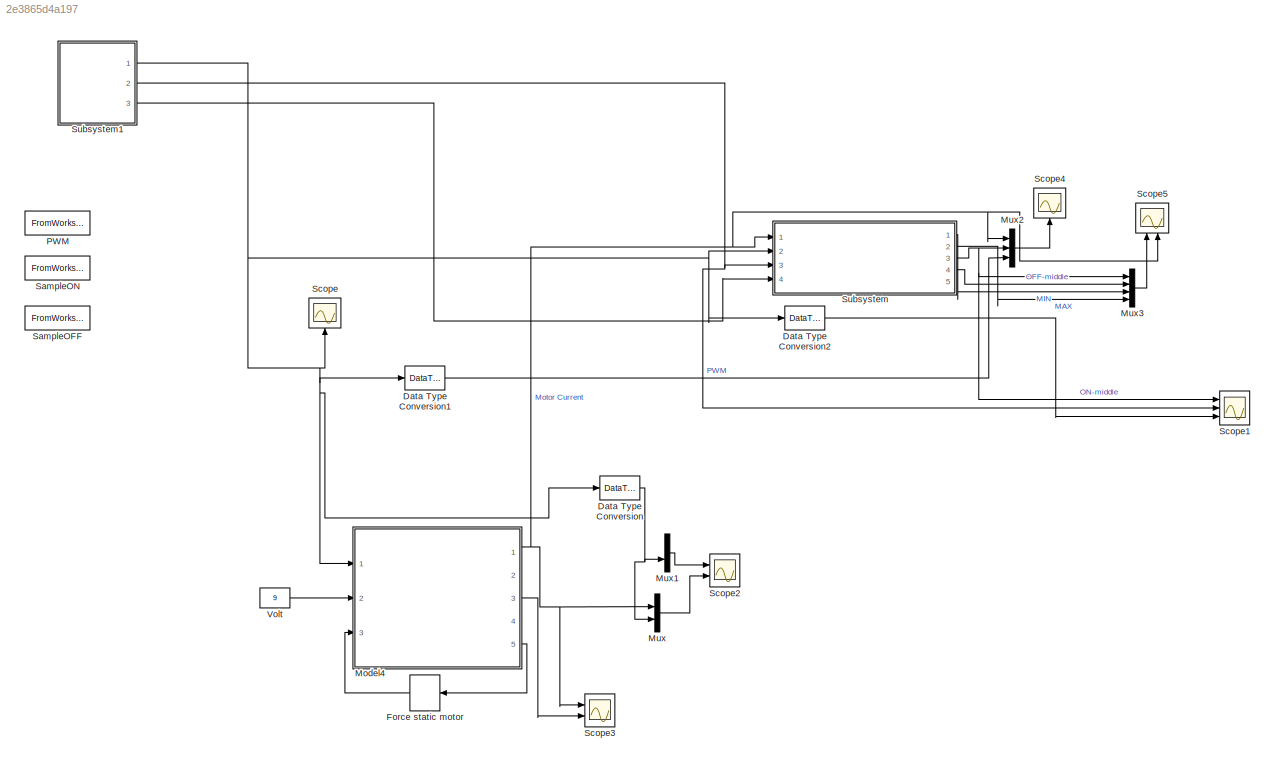
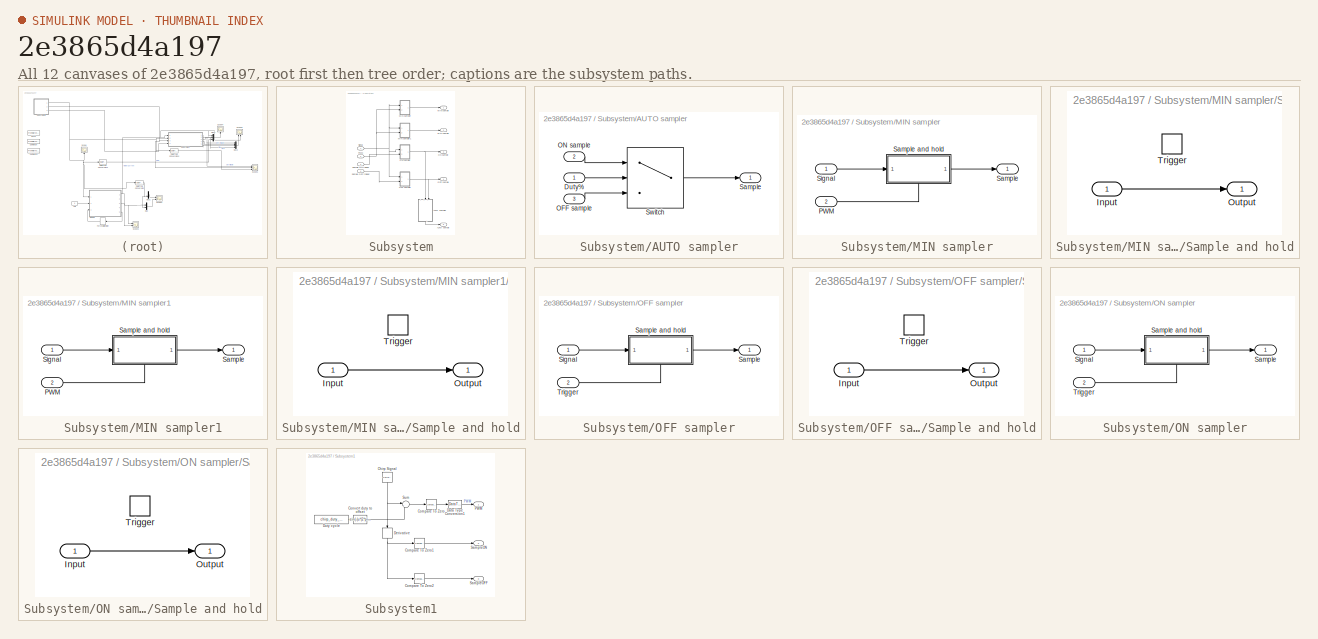
[diagram: thumbnail index - all 12 canvases of the model, root first then tree order]
MODEL slx_2e3865d4a197
KIND model
CONFIG AbsTol = auto
CONFIG EnableMultiTasking = off
CONFIG FixedStep = auto
CONFIG InitFcn = Parameters_Model\nParameters_Simulation\nParameters_Test_Chirp
CONFIG MaxStep = 1/(PWM_Resolution*PWM_Frequency)
CONFIG MinStep = auto
CONFIG PreLoadFcn = modelDir = fileparts(get_param(bdroot, 'FileName'));\naddpath(fullfile(modelDir,'../Parameters'));\naddpath(fullfile(modelDir,'subsystems'));\naddpath(fullfile(modelDir,'../DesignExploration/functions')); % for PWM_Generator\n\nParameters_Model\nParameters_Simulation\nParameters_Test_Chirp
CONFIG RelTol = 1e-3
CONFIG SampleTimeConstraint = Unconstrained
CONFIG Solver = VariableStepAuto
CONFIG SolverName = VariableStepAuto
CONFIG StartTime = 0.0
CONFIG StopTime = PWM.Time(end)
BLOCK [DataTypeConversion] Data Type Conversion
  RndMeth = Round
  SaturateOnIntegerOverflow = off
BLOCK [DataTypeConversion] Data Type Conversion1
  RndMeth = Round
  SaturateOnIntegerOverflow = off
BLOCK [DataTypeConversion] Data Type Conversion2
  RndMeth = Round
  SaturateOnIntegerOverflow = off
BLOCK [ManualSwitch] Force static motor
BLOCK [ModelReference] Model4
  ModelNameDialog = DC_Motor_BrakeMode
  ModelReferenceVersion = 1.43
  Ports = [3, 5]
BLOCK [Mux] Mux
  DisplayOption = bar
  Inputs = 2
  Ports = [2, 1]
BLOCK [Mux] Mux1
  DisplayOption = bar
  Inputs = 2
  Ports = [2, 1]
BLOCK [Mux] Mux2
  DisplayOption = bar
  Inputs = 3
  Ports = [3, 1]
BLOCK [Mux] Mux3
  DisplayOption = bar
  Ports = [4, 1]
BLOCK [FromWorkspace] PWM
  Interpolate = off
  OutputAfterFinalValue = Holding final value
  SampleTime = 0
  VariableName = PWM
  ZeroCross = on
BLOCK [FromWorkspace] SampleOFF
  Interpolate = off
  OutputAfterFinalValue = Holding final value
  SampleTime = 0
  VariableName = SampleOFF
  ZeroCross = on
BLOCK [FromWorkspace] SampleON
  Interpolate = off
  OutputAfterFinalValue = Holding final value
  SampleTime = 0
  VariableName = SampleON
  ZeroCross = on
BLOCK [Scope] Scope
  Floating = off
  NumInputPorts = 1
  Ports = [1]
  ScopeSpecificationString = Simulink.scopes.TimeScopeBlockCfg('CurrentConfiguration', extmgr.ConfigurationSet(extmgr.Configuration('Core','General UI',true),extmgr.Configuration('Core','Source UI',true),extmgr.Configuration('Sources','WiredSimulink',true),extmgr.Configuration('Visuals','Time Domain',true,'SerializedDisplays',{struct('MinYLimReal','-0.125','MaxYLimReal','1.125','YLabelReal','','MinYLimMag','0.00000','MaxYLimM...<+1420ch>
BLOCK [Scope] Scope1
  Floating = off
  NumInputPorts = 3
  Ports = [3]
  ScopeSpecificationString = Simulink.scopes.TimeScopeBlockCfg('CurrentConfiguration', extmgr.ConfigurationSet(extmgr.Configuration('Core','General UI',true),extmgr.Configuration('Core','Source UI',true),extmgr.Configuration('Sources','WiredSimulink',true,'DataLoggingVariableName','ScopeData3'),extmgr.Configuration('Visuals','Time Domain',true,'SerializedDisplays',{struct('MinYLimReal','-0.45592','MaxYLimReal','4.10328','YLab...<+1556ch>
BLOCK [Scope] Scope2
  Floating = off
  NumInputPorts = 2
  Ports = [2]
  ScopeSpecificationString = Simulink.scopes.TimeScopeBlockCfg('CurrentConfiguration', extmgr.ConfigurationSet(extmgr.Configuration('Core','General UI',true),extmgr.Configuration('Core','Source UI',true),extmgr.Configuration('Sources','WiredSimulink',true,'DataLoggingVariableName','ScopeData1'),extmgr.Configuration('Visuals','Time Domain',true,'SerializedDisplays',{struct('MinYLimReal','-0.125','MaxYLimReal','1.125','YLabelRe...<+2520ch>
BLOCK [Scope] Scope3
  Floating = off
  NumInputPorts = 2
  Ports = [2]
  ScopeSpecificationString = Simulink.scopes.TimeScopeBlockCfg('CurrentConfiguration', extmgr.ConfigurationSet(extmgr.Configuration('Core','General UI',true),extmgr.Configuration('Core','Source UI',true),extmgr.Configuration('Sources','WiredSimulink',true,'DataLoggingVariableName','ScopeData2'),extmgr.Configuration('Visuals','Time Domain',true,'SerializedDisplays',{struct('MinYLimReal','-0.4159','MaxYLimReal','3.74313','YLabe...<+2236ch>
BLOCK [Scope] Scope4
  Floating = off
  NumInputPorts = 1
  Ports = [1]
  ScopeSpecificationString = Simulink.scopes.TimeScopeBlockCfg('CurrentConfiguration', extmgr.ConfigurationSet(extmgr.Configuration('Core','General UI',true),extmgr.Configuration('Core','Source UI',true),extmgr.Configuration('Sources','WiredSimulink',true,'DataLoggingVariableName','ScopeData1'),extmgr.Configuration('Visuals','Time Domain',true,'SerializedDisplays',{struct('MinYLimReal','-0.4159','MaxYLimReal','3.74313','YLabe...<+1511ch>
BLOCK [Scope] Scope5
  Floating = off
  NumInputPorts = 2
  Ports = [2]
  ScopeSpecificationString = Simulink.scopes.TimeScopeBlockCfg('CurrentConfiguration', extmgr.ConfigurationSet(extmgr.Configuration('Core','General UI',true),extmgr.Configuration('Core','Source UI',true),extmgr.Configuration('Sources','WiredSimulink',true,'DataLoggingVariableName','ScopeData2'),extmgr.Configuration('Visuals','Time Domain',true,'SerializedDisplays',{struct('MinYLimReal','-0.4159','MaxYLimReal','3.74313','YLabe...<+1893ch>
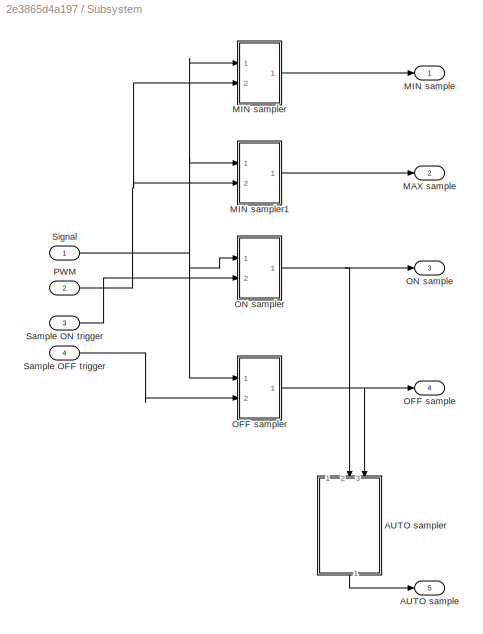
BLOCK [SubSystem] Subsystem
  Ports = [4, 5]
  RequestExecContextInheritance = off
BLOCK [Outport] Subsystem/AUTO sample
  IconDisplay = Port number
  Port = 5
  VectorParamsAs1DForOutWhenUnconnected = off
BLOCK [SubSystem] Subsystem/AUTO sampler
  Ports = [3, 1]
  RequestExecContextInheritance = off
BLOCK [Inport] Subsystem/AUTO sampler/Duty%
  IconDisplay = Port number
  OutDataTypeStr = double
BLOCK [Inport] Subsystem/AUTO sampler/OFF sample
  IconDisplay = Port number
  Port = 3
BLOCK [Inport] Subsystem/AUTO sampler/ON sample
  IconDisplay = Port number
  Port = 2
BLOCK [Outport] Subsystem/AUTO sampler/Sample
  IconDisplay = Port number
  VectorParamsAs1DForOutWhenUnconnected = off
BLOCK [Switch] Subsystem/AUTO sampler/Switch
  InputSameDT = off
  SaturateOnIntegerOverflow = off
  Threshold = 0.5
BLOCK [Outport] Subsystem/MAX sample
  IconDisplay = Port number
  Port = 2
  VectorParamsAs1DForOutWhenUnconnected = off
BLOCK [Outport] Subsystem/MIN sample
  IconDisplay = Port number
  VectorParamsAs1DForOutWhenUnconnected = off
BLOCK [SubSystem] Subsystem/MIN sampler
  Ports = [2, 1]
  RequestExecContextInheritance = off
BLOCK [Inport] Subsystem/MIN sampler/PWM
  IconDisplay = Port number
  Port = 2
BLOCK [Outport] Subsystem/MIN sampler/Sample
  IconDisplay = Port number
  VectorParamsAs1DForOutWhenUnconnected = off
BLOCK [SubSystem] Subsystem/MIN sampler/Sample and hold
  Ports = [1, 1, 0, 1]
  RequestExecContextInheritance = off
BLOCK [Inport] Subsystem/MIN sampler/Sample and hold/Input
  IconDisplay = Port number
BLOCK [Outport] Subsystem/MIN sampler/Sample and hold/Output
  IconDisplay = Port number
  VectorParamsAs1DForOutWhenUnconnected = off
BLOCK [TriggerPort] Subsystem/MIN sampler/Sample and hold/Trigger
  PortDimensions = 1
  Ports = []
  StatesWhenEnabling = held
  VariantControl = Variant
BLOCK [Inport] Subsystem/MIN sampler/Signal
  IconDisplay = Port number
BLOCK [SubSystem] Subsystem/MIN sampler1
  Ports = [2, 1]
  RequestExecContextInheritance = off
BLOCK [Inport] Subsystem/MIN sampler1/PWM
  IconDisplay = Port number
  Port = 2
BLOCK [Outport] Subsystem/MIN sampler1/Sample
  IconDisplay = Port number
  VectorParamsAs1DForOutWhenUnconnected = off
BLOCK [SubSystem] Subsystem/MIN sampler1/Sample and hold
  Ports = [1, 1, 0, 1]
  RequestExecContextInheritance = off
BLOCK [Inport] Subsystem/MIN sampler1/Sample and hold/Input
  IconDisplay = Port number
BLOCK [Outport] Subsystem/MIN sampler1/Sample and hold/Output
  IconDisplay = Port number
  VectorParamsAs1DForOutWhenUnconnected = off
BLOCK [TriggerPort] Subsystem/MIN sampler1/Sample and hold/Trigger
  PortDimensions = 1
  Ports = []
  StatesWhenEnabling = held
  TriggerType = falling
  VariantControl = Variant
BLOCK [Inport] Subsystem/MIN sampler1/Signal
  IconDisplay = Port number
BLOCK [Outport] Subsystem/OFF sample
  IconDisplay = Port number
  Port = 4
  VectorParamsAs1DForOutWhenUnconnected = off
BLOCK [SubSystem] Subsystem/OFF sampler
  Ports = [2, 1]
  RequestExecContextInheritance = off
BLOCK [Outport] Subsystem/OFF sampler/Sample
  IconDisplay = Port number
  VectorParamsAs1DForOutWhenUnconnected = off
BLOCK [SubSystem] Subsystem/OFF sampler/Sample and hold
  Ports = [1, 1, 0, 1]
  RequestExecContextInheritance = off
BLOCK [Inport] Subsystem/OFF sampler/Sample and hold/Input
  IconDisplay = Port number
BLOCK [Outport] Subsystem/OFF sampler/Sample and hold/Output
  IconDisplay = Port number
  VectorParamsAs1DForOutWhenUnconnected = off
BLOCK [TriggerPort] Subsystem/OFF sampler/Sample and hold/Trigger
  PortDimensions = 1
  Ports = []
  StatesWhenEnabling = held
  TriggerType = falling
  VariantControl = Variant
BLOCK [Inport] Subsystem/OFF sampler/Signal
  IconDisplay = Port number
BLOCK [Inport] Subsystem/OFF sampler/Trigger
  IconDisplay = Port number
  Port = 2
BLOCK [Outport] Subsystem/ON sample
  IconDisplay = Port number
  Port = 3
  VectorParamsAs1DForOutWhenUnconnected = off
BLOCK [SubSystem] Subsystem/ON sampler
  Ports = [2, 1]
  RequestExecContextInheritance = off
BLOCK [Outport] Subsystem/ON sampler/Sample
  IconDisplay = Port number
  VectorParamsAs1DForOutWhenUnconnected = off
BLOCK [SubSystem] Subsystem/ON sampler/Sample and hold
  Ports = [1, 1, 0, 1]
  RequestExecContextInheritance = off
BLOCK [Inport] Subsystem/ON sampler/Sample and hold/Input
  IconDisplay = Port number
BLOCK [Outport] Subsystem/ON sampler/Sample and hold/Output
  IconDisplay = Port number
  VectorParamsAs1DForOutWhenUnconnected = off
BLOCK [TriggerPort] Subsystem/ON sampler/Sample and hold/Trigger
  PortDimensions = 1
  Ports = []
  StatesWhenEnabling = held
  TriggerType = falling
  VariantControl = Variant
BLOCK [Inport] Subsystem/ON sampler/Signal
  IconDisplay = Port number
BLOCK [Inport] Subsystem/ON sampler/Trigger
  IconDisplay = Port number
  Port = 2
BLOCK [Inport] Subsystem/PWM
  IconDisplay = Port number
  Port = 2
BLOCK [Inport] Subsystem/Sample OFF trigger
  IconDisplay = Port number
  Port = 4
BLOCK [Inport] Subsystem/Sample ON trigger
  IconDisplay = Port number
  Port = 3
BLOCK [Inport] Subsystem/Signal
  IconDisplay = Port number
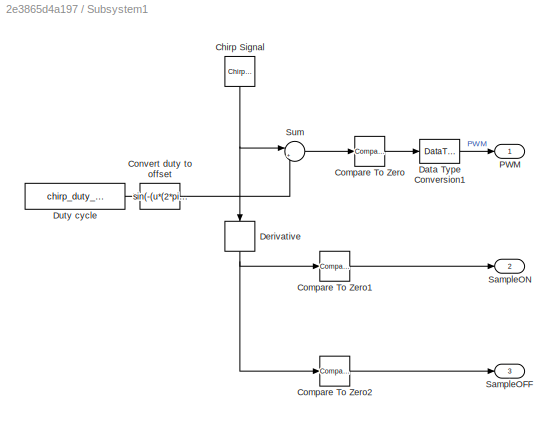
BLOCK [SubSystem] Subsystem1
  Ports = [0, 3]
  RequestExecContextInheritance = off
BLOCK [Reference] Subsystem1/Chirp Signal  REF=simulink/Sources/Chirp Signal
  Ports = [0, 1]
  SourceBlock = simulink/Sources/Chirp Signal
  SourceProductBaseCode = SL
  SourceProductName = Simulink
  SourceType = chirp
BLOCK [Reference] Subsystem1/Compare To Zero  REF=simulink/Logic and Bit
Operations/Compare
To Zero
  Ports = [1, 1]
  SourceBlock = simulink/Logic and Bit\nOperations/Compare\nTo Zero
  SourceProductBaseCode = SL
  SourceProductName = Simulink
  SourceType = Compare To Zero
BLOCK [Reference] Subsystem1/Compare To Zero1  REF=simulink/Logic and Bit
Operations/Compare
To Zero
  Ports = [1, 1]
  SourceBlock = simulink/Logic and Bit\nOperations/Compare\nTo Zero
  SourceProductBaseCode = SL
  SourceProductName = Simulink
  SourceType = Compare To Zero
BLOCK [Reference] Subsystem1/Compare To Zero2  REF=simulink/Logic and Bit
Operations/Compare
To Zero
  Ports = [1, 1]
  SourceBlock = simulink/Logic and Bit\nOperations/Compare\nTo Zero
  SourceProductBaseCode = SL
  SourceProductName = Simulink
  SourceType = Compare To Zero
BLOCK [Fcn] Subsystem1/Convert duty to offset
  Expr = sin(-(u*(2*pi) - pi) / 2)
BLOCK [DataTypeConversion] Subsystem1/Data Type Conversion1
  RndMeth = Round
  SaturateOnIntegerOverflow = off
BLOCK [Derivative] Subsystem1/Derivative
BLOCK [Constant] Subsystem1/Duty cycle
  Value = chirp_duty_cycle
BLOCK [Outport] Subsystem1/PWM
  IconDisplay = Port number
  OutDataTypeStr = int8
  VectorParamsAs1DForOutWhenUnconnected = off
BLOCK [Outport] Subsystem1/SampleOFF
  IconDisplay = Port number
  Port = 3
  VectorParamsAs1DForOutWhenUnconnected = off
BLOCK [Outport] Subsystem1/SampleON
  IconDisplay = Port number
  Port = 2
  VectorParamsAs1DForOutWhenUnconnected = off
BLOCK [Sum] Subsystem1/Sum
  IconShape = round
  InputSameDT = off
  Inputs = |+-
  OutDataTypeStr = Inherit: Inherit via internal rule
  Ports = [2, 1]
  SaturateOnIntegerOverflow = off
BLOCK [Constant] Volt
  Value = 9
LINE Data Type Conversion1:1 -> Mux2:3
LINE Data Type Conversion2:1 -> Scope1:3
NET Data Type Conversion:1 -> Mux1:2, Mux:2
LINE Force static motor:1 -> Model4:3
NET Model4:1 -> Mux2:1, Mux:1, Scope3:1, Scope5:2, Subsystem:1
LINE Model4:3 -> Scope3:2
LINE Model4:5 -> Force static motor:1
LINE Mux1:1 -> Scope2:1
LINE Mux2:1 -> Scope4:1
LINE Mux3:1 -> Scope5:1
LINE Mux:1 -> Scope2:2
LINE Subsystem/AUTO sampler/Duty%:1 -> Subsystem/AUTO sampler/Switch:2
LINE Subsystem/AUTO sampler/OFF sample:1 -> Subsystem/AUTO sampler/Switch:3
LINE Subsystem/AUTO sampler/ON sample:1 -> Subsystem/AUTO sampler/Switch:1
LINE Subsystem/AUTO sampler/Switch:1 -> Subsystem/AUTO sampler/Sample:1
LINE Subsystem/AUTO sampler:1 -> Subsystem/AUTO sample:1
LINE Subsystem/MIN sampler/PWM:1 -> Subsystem/MIN sampler/Sample and hold:trigger
LINE Subsystem/MIN sampler/Sample and hold/Input:1 -> Subsystem/MIN sampler/Sample and hold/Output:1
LINE Subsystem/MIN sampler/Sample and hold:1 -> Subsystem/MIN sampler/Sample:1
LINE Subsystem/MIN sampler/Signal:1 -> Subsystem/MIN sampler/Sample and hold:1
LINE Subsystem/MIN sampler1/PWM:1 -> Subsystem/MIN sampler1/Sample and hold:trigger
LINE Subsystem/MIN sampler1/Sample and hold/Input:1 -> Subsystem/MIN sampler1/Sample and hold/Output:1
LINE Subsystem/MIN sampler1/Sample and hold:1 -> Subsystem/MIN sampler1/Sample:1
LINE Subsystem/MIN sampler1/Signal:1 -> Subsystem/MIN sampler1/Sample and hold:1
LINE Subsystem/MIN sampler1:1 -> Subsystem/MAX sample:1
LINE Subsystem/MIN sampler:1 -> Subsystem/MIN sample:1
LINE Subsystem/OFF sampler/Sample and hold/Input:1 -> Subsystem/OFF sampler/Sample and hold/Output:1
LINE Subsystem/OFF sampler/Sample and hold:1 -> Subsystem/OFF sampler/Sample:1
LINE Subsystem/OFF sampler/Signal:1 -> Subsystem/OFF sampler/Sample and hold:1
LINE Subsystem/OFF sampler/Trigger:1 -> Subsystem/OFF sampler/Sample and hold:trigger
NET Subsystem/OFF sampler:1 -> Subsystem/AUTO sampler:3, Subsystem/OFF sample:1
LINE Subsystem/ON sampler/Sample and hold/Input:1 -> Subsystem/ON sampler/Sample and hold/Output:1
LINE Subsystem/ON sampler/Sample and hold:1 -> Subsystem/ON sampler/Sample:1
LINE Subsystem/ON sampler/Signal:1 -> Subsystem/ON sampler/Sample and hold:1
LINE Subsystem/ON sampler/Trigger:1 -> Subsystem/ON sampler/Sample and hold:trigger
NET Subsystem/ON sampler:1 -> Subsystem/AUTO sampler:2, Subsystem/ON sample:1
NET Subsystem/PWM:1 -> Subsystem/MIN sampler1:2, Subsystem/MIN sampler:2
LINE Subsystem/Sample OFF trigger:1 -> Subsystem/OFF sampler:2
LINE Subsystem/Sample ON trigger:1 -> Subsystem/ON sampler:2
NET Subsystem/Signal:1 -> Subsystem/MIN sampler1:1, Subsystem/MIN sampler:1, Subsystem/OFF sampler:1, Subsystem/ON sampler:1
NET Subsystem1/Chirp Signal:1 -> Subsystem1/Derivative:1, Subsystem1/Sum:1
LINE Subsystem1/Compare To Zero1:1 -> Subsystem1/SampleON:1
LINE Subsystem1/Compare To Zero2:1 -> Subsystem1/SampleOFF:1
LINE Subsystem1/Compare To Zero:1 -> Subsystem1/Data Type Conversion1:1
LINE Subsystem1/Convert duty to offset:1 -> Subsystem1/Sum:2
LINE Subsystem1/Data Type Conversion1:1 -> Subsystem1/PWM:1
NET Subsystem1/Derivative:1 -> Subsystem1/Compare To Zero1:1, Subsystem1/Compare To Zero2:1
LINE Subsystem1/Duty cycle:1 -> Subsystem1/Convert duty to offset:1
LINE Subsystem1/Sum:1 -> Subsystem1/Compare To Zero:1
NET Subsystem1:1 -> Data Type Conversion1:1, Data Type Conversion2:1, Data Type Conversion:1, Model4:1, Scope:1, Subsystem:2
NET Subsystem1:2 -> Scope1:2, Subsystem:3
LINE Subsystem1:3 -> Subsystem:4
LINE Subsystem:1 -> Mux3:3
LINE Subsystem:2 -> Mux3:4
NET Subsystem:3 -> Mux2:2, Mux3:1, Scope1:1
LINE Subsystem:4 -> Mux3:2
LINE Volt:1 -> Model4:2
note: NET lines group one-source signal fan-out (src -> all destinations, sorted); 1:1 wires keep LINE
